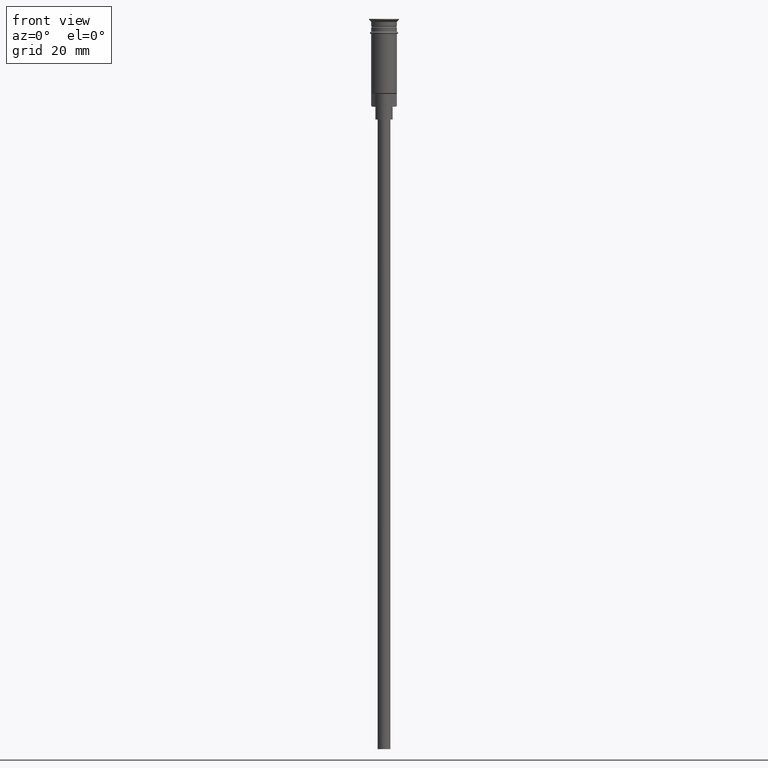
[diagram: clean part render]
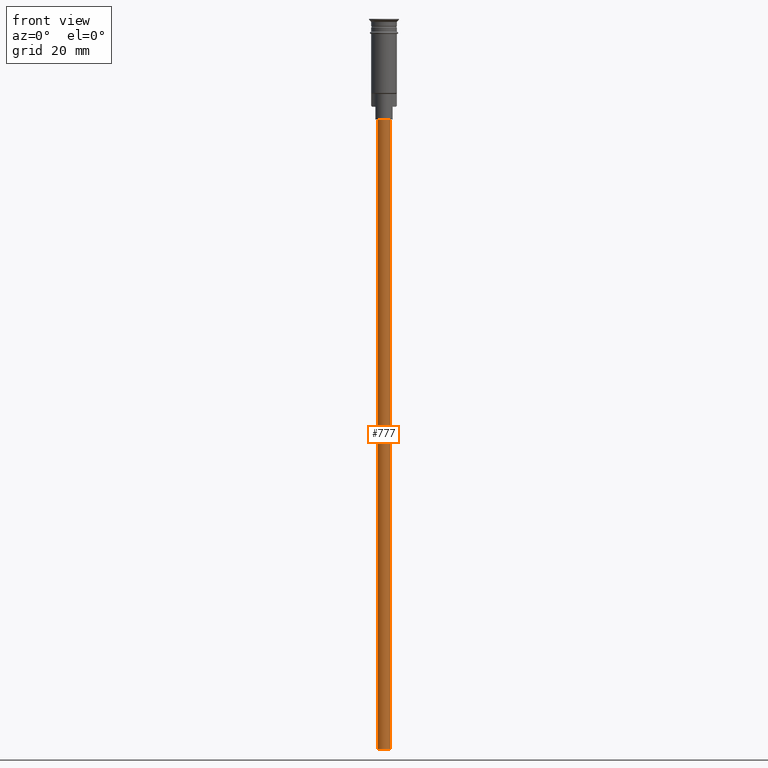
[diagram: same view with one face highlighted and labeled with its STEP entity id]
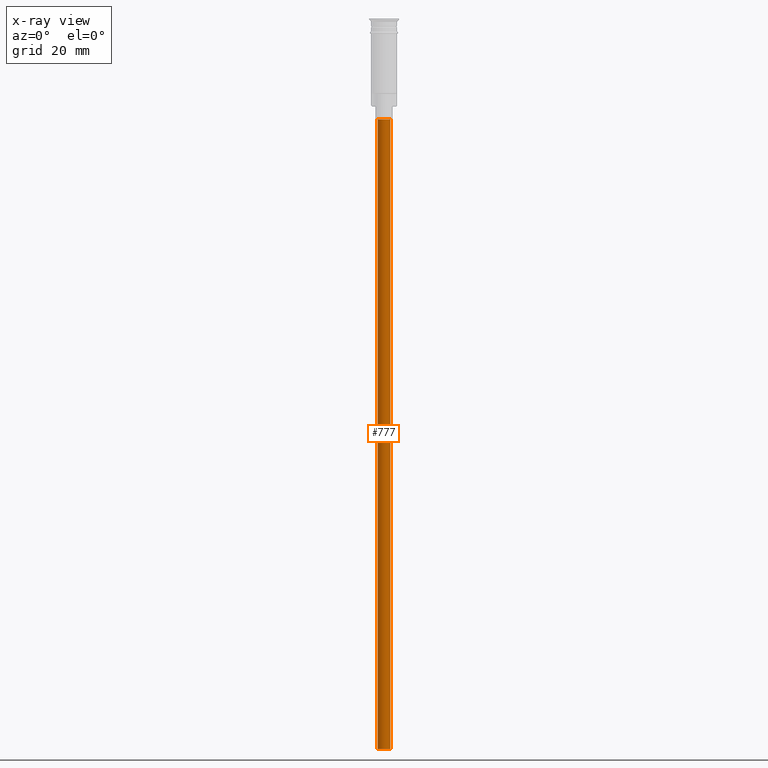
[diagram: x-ray of the same camera — body ghosted, the highlighted face saturated]
A machine part, front view. The second image highlights one B-rep face of the part: STEP entity #777.
The next image is the same camera in x-ray: the body ghosted, the highlighted face saturated — about 0% of this face is hidden behind the body in this view.
In plain terms, the highlighted cylindrical surface (edge-blend (fillet) strip) has radius 1.5 mm, axis along (-0, -0, 1).
Its self-contained STEP definition (entity closure, byte-faithful):
#101 = CARTESIAN_POINT ( 'NONE',  ( 1.500000000000000222, 0.000000000000000000, -170.4999999999999716 ) ) ;
#130 = DIRECTION ( 'NONE',  ( 1.000000000000000000, 0.000000000000000000, 0.000000000000000000 ) ) ;
#160 = EDGE_CURVE ( 'NONE', #682, #1395, #465, .T. ) ;
#162 = CIRCLE ( 'NONE', #238, 1.500000000000000222 ) ;
#196 = CARTESIAN_POINT ( 'NONE',  ( 1.500000000000000222, 0.000000000000000000, -23.50000000000000000 ) ) ;
#220 = AXIS2_PLACEMENT_3D ( 'NONE', #509, #378, #130 ) ;
#238 = AXIS2_PLACEMENT_3D ( 'NONE', #1156, #1514, #287 ) ;
#252 = CYLINDRICAL_SURFACE ( 'NONE', #220, 1.500000000000000222 ) ;
#286 = DIRECTION ( 'NONE',  ( -0.000000000000000000, -0.000000000000000000, 1.000000000000000000 ) ) ;
#287 = DIRECTION ( 'NONE',  ( -1.000000000000000000, 0.000000000000000000, 0.000000000000000000 ) ) ;
#293 = ORIENTED_EDGE ( 'NONE', *, *, #428, .F. ) ;
#294 = VECTOR ( 'NONE', #1090, 1000.000000000000000 ) ;
#378 = DIRECTION ( 'NONE',  ( -0.000000000000000000, -0.000000000000000000, 1.000000000000000000 ) ) ;
#386 = VERTEX_POINT ( 'NONE', #522 ) ;
#428 = EDGE_CURVE ( 'NONE', #682, #578, #162, .T. ) ;
#451 = ORIENTED_EDGE ( 'NONE', *, *, #1297, .T. ) ;
#465 = LINE ( 'NONE', #101, #294 ) ;
#509 = CARTESIAN_POINT ( 'NONE',  ( 0.000000000000000000, 0.000000000000000000, -170.4999999999999716 ) ) ;
#522 = CARTESIAN_POINT ( 'NONE',  ( -1.500000000000000222, 1.836970198721030181E-16, -23.50000000000000000 ) ) ;
#553 = ORIENTED_EDGE ( 'NONE', *, *, #160, .T. ) ;
#562 = AXIS2_PLACEMENT_3D ( 'NONE', #1035, #1153, #1291 ) ;
#578 = VERTEX_POINT ( 'NONE', #593 ) ;
#593 = CARTESIAN_POINT ( 'NONE',  ( -1.500000000000000222, 1.836970198721030181E-16, -170.4999999999999716 ) ) ;
#632 = CIRCLE ( 'NONE', #562, 1.500000000000000222 ) ;
#682 = VERTEX_POINT ( 'NONE', #1474 ) ;
#765 = CARTESIAN_POINT ( 'NONE',  ( -1.500000000000000222, 1.836970198721030181E-16, -170.4999999999999716 ) ) ;
#777 = ADVANCED_FACE ( 'NONE', ( #1500 ), #252, .T. ) ;
#1007 = LINE ( 'NONE', #765, #1361 ) ;
#1035 = CARTESIAN_POINT ( 'NONE',  ( 0.000000000000000000, 0.000000000000000000, -23.50000000000000000 ) ) ;
#1090 = DIRECTION ( 'NONE',  ( -0.000000000000000000, -0.000000000000000000, 1.000000000000000000 ) ) ;
#1153 = DIRECTION ( 'NONE',  ( 0.000000000000000000, 0.000000000000000000, -1.000000000000000000 ) ) ;
#1156 = CARTESIAN_POINT ( 'NONE',  ( 0.000000000000000000, 0.000000000000000000, -170.4999999999999716 ) ) ;
#1291 = DIRECTION ( 'NONE',  ( -1.000000000000000000, 0.000000000000000000, 0.000000000000000000 ) ) ;
#1297 = EDGE_CURVE ( 'NONE', #1395, #386, #632, .T. ) ;
#1361 = VECTOR ( 'NONE', #286, 1000.000000000000000 ) ;
#1382 = EDGE_CURVE ( 'NONE', #578, #386, #1007, .T. ) ;
#1395 = VERTEX_POINT ( 'NONE', #196 ) ;
#1474 = CARTESIAN_POINT ( 'NONE',  ( 1.500000000000000222, 0.000000000000000000, -170.4999999999999716 ) ) ;
#1500 = FACE_OUTER_BOUND ( 'NONE', #1604, .T. ) ;
#1514 = DIRECTION ( 'NONE',  ( 0.000000000000000000, 0.000000000000000000, -1.000000000000000000 ) ) ;
#1523 = ORIENTED_EDGE ( 'NONE', *, *, #1382, .F. ) ;
#1604 = EDGE_LOOP ( 'NONE', ( #1523, #293, #553, #451 ) ) ;